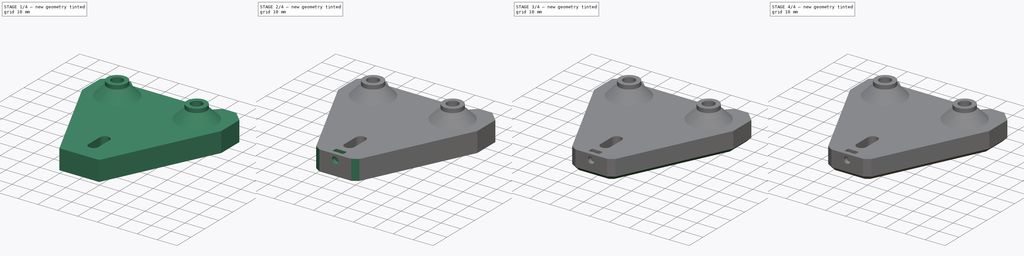
[diagram: build sequence overview — one tinted view per stage of 4, left to right]
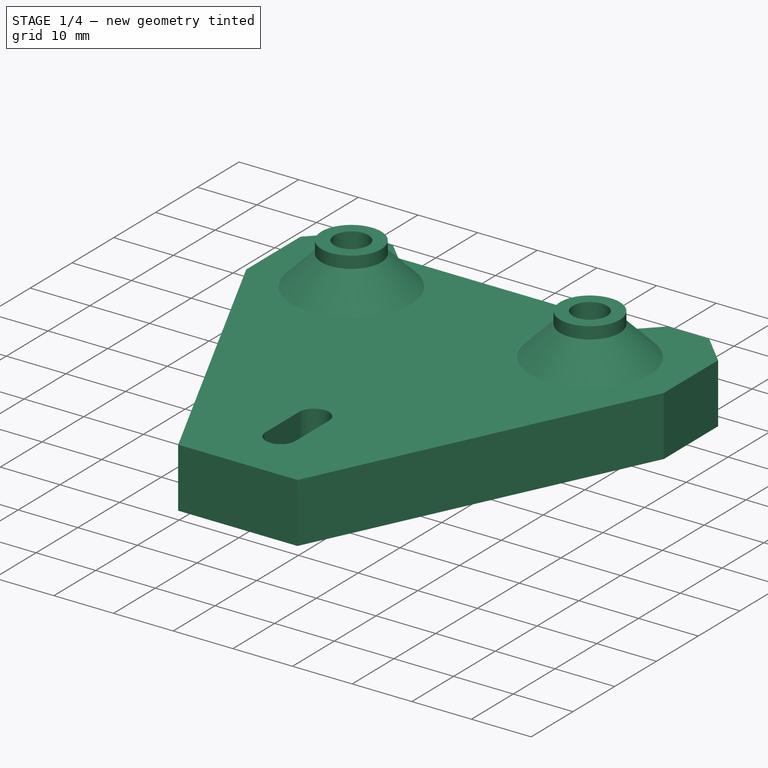
[diagram: stage 1 of 4 — iso view after this stage's code; geometry added in this stage tinted green]
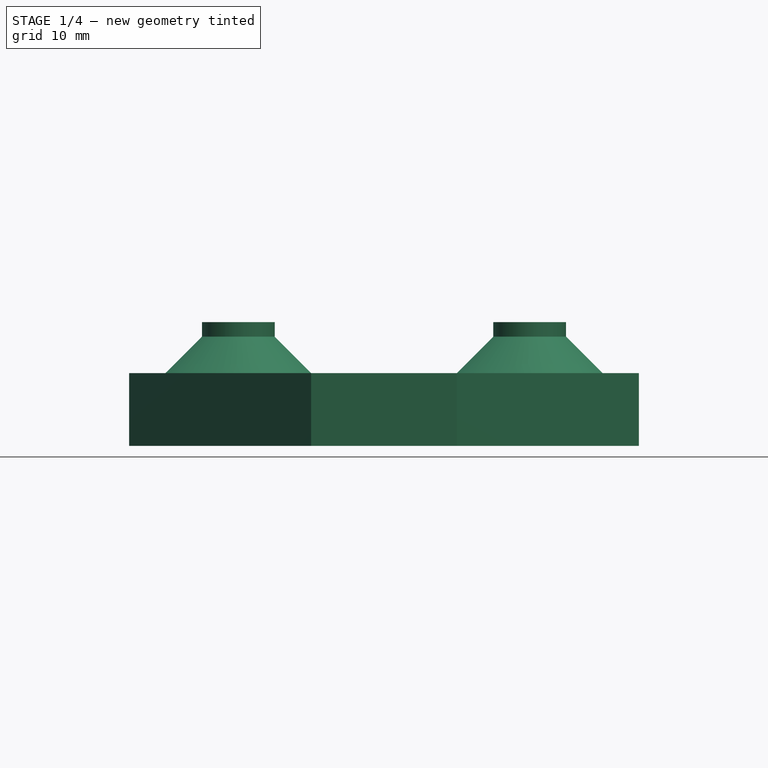
[diagram: stage 1 of 4 — front view after this stage's code; geometry added in this stage tinted green]
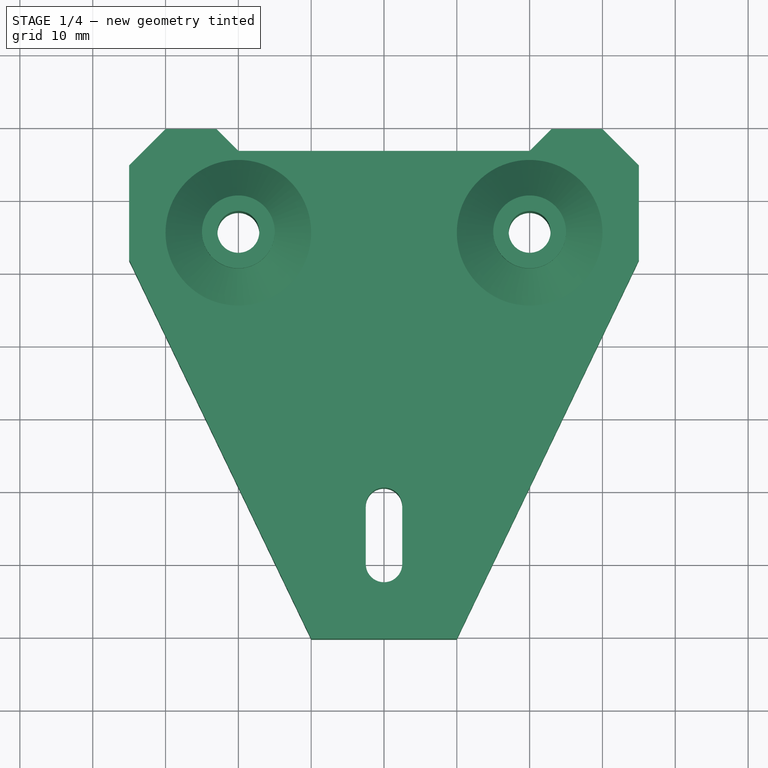
[diagram: stage 1 of 4 — top view after this stage's code; geometry added in this stage tinted green]
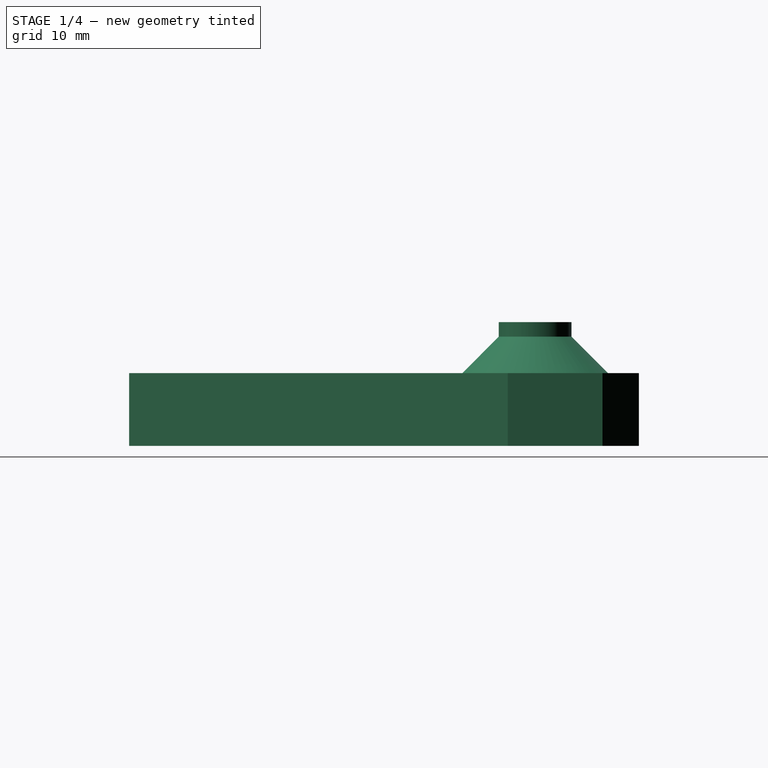
[diagram: stage 1 of 4 — right view after this stage's code; geometry added in this stage tinted green]
FCSTD DOCUMENT  (FreeCAD 0.20R29410 (Git))
Label: y-gantry-support
License: All rights reserved
LicenseURL: http://en.wikipedia.org/wiki/All_rights_reserved
objects: Sketcher::SketchObject×8, PartDesign::Pocket×8, PartDesign::Plane×7, PartDesign::Chamfer×4, PartDesign::Pad×2, PartDesign::Body×1
note: 44 computed .brp shape members not serialized (recipe doc carries the construction recipe); baked Part::Feature solids carry a one-line shape summary decoded from their .brp

FEATURE [Sketcher::SketchObject] Sketch
  FullyConstrained = true
  MapMode = 5
  Support = -> [XY_Plane]
  sketch-geometry (22):
    g0: ArcOfCircle CenterX=0 CenterY=0 CenterZ=0 NormalX=0 NormalY=0 NormalZ=1 AngleXU=0 Radius=2.5 StartAngle=3.14159 EndAngle=6.28319
    g1: ArcOfCircle CenterX=0 CenterY=8 CenterZ=0 NormalX=0 NormalY=0 NormalZ=1 AngleXU=0 Radius=2.5 StartAngle=0 EndAngle=3.14159
    g2: LineSegment StartX=2.5 StartY=-6e-16 StartZ=0 EndX=2.5 EndY=8 EndZ=0
    g3: LineSegment StartX=-2.5 StartY=-8e-16 StartZ=0 EndX=-2.5 EndY=8 EndZ=0
    g4: LineSegment StartX=-2.5 StartY=4 StartZ=0 EndX=2.5 EndY=4 EndZ=0
    g5: Circle CenterX=0 CenterY=4 CenterZ=0 NormalX=0 NormalY=0 NormalZ=1 AngleXU=0 Radius=12.5
    g6: LineSegment StartX=0 StartY=4 StartZ=0 EndX=0 EndY=45.5 EndZ=0
    g7: LineSegment StartX=-20 StartY=45.5 StartZ=0 EndX=20 EndY=45.5 EndZ=0
    g8: Circle CenterX=-20 CenterY=45.5 CenterZ=0 NormalX=0 NormalY=0 NormalZ=1 AngleXU=0 Radius=12.5
    g9: Circle CenterX=20 CenterY=45.5 CenterZ=0 NormalX=0 NormalY=0 NormalZ=1 AngleXU=0 Radius=12.5
    g10: Circle CenterX=-20 CenterY=45.5 CenterZ=0 NormalX=0 NormalY=0 NormalZ=1 AngleXU=0 Radius=2.875
    g11: Circle CenterX=20 CenterY=45.5 CenterZ=0 NormalX=0 NormalY=0 NormalZ=1 AngleXU=0 Radius=2.875
    g12: LineSegment StartX=-10 StartY=-10.25 StartZ=0 EndX=10 EndY=-10.25 EndZ=0
    g13: LineSegment StartX=10 StartY=-10.25 StartZ=0 EndX=35 EndY=41.75 EndZ=0
    g14: LineSegment StartX=35 StartY=41.75 StartZ=0 EndX=35 EndY=59.75 EndZ=0
    g15: LineSegment StartX=35 StartY=59.75 StartZ=0 EndX=23 EndY=59.75 EndZ=0
    g16: LineSegment StartX=-35 StartY=59.75 StartZ=0 EndX=-35 EndY=41.75 EndZ=0
    g17: LineSegment StartX=-35 StartY=41.75 StartZ=0 EndX=-10 EndY=-10.25 EndZ=0
    g18: LineSegment StartX=-23 StartY=59.75 StartZ=0 EndX=-20 EndY=56.75 EndZ=0
    g19: LineSegment StartX=-20 StartY=56.75 StartZ=0 EndX=20 EndY=56.75 EndZ=0
    g20: LineSegment StartX=20 StartY=56.75 StartZ=0 EndX=23 EndY=59.75 EndZ=0
    g21: LineSegment StartX=-23 StartY=59.75 StartZ=0 EndX=-35 EndY=59.75 EndZ=0
  constraints (55):
    c: Tangent(g0,g3)
    c: Tangent(g0,g2)
    c: Tangent(g2,g1)
    c: Tangent(g3,g1)
    c: Vertical(g2)
    c: Equal(g0,g1)
    c: Coincident(g0,g-1)
    c: Distance(g2) = 8
    c: Diameter(g1) = 5
    c: PointOnObject(g4,g3)
    c: PointOnObject(g4,g2)
    c: Symmetric(g1,g0,g4)
    c: PointOnObject(g5,g4)
    c: PointOnObject(g5,g-2)
    c: Diameter(g5) = 25
    c: Coincident(g6,g5)
    c: PointOnObject(g6,g-2)
    c: PointOnObject(g6,g7)
    c: Symmetric(g7,g7,g6)
    c: Coincident(g8,g7)
    c: Coincident(g9,g7)
    c: Diameter(g9) = 25
    c: Diameter(g8) = 25
    c: Coincident(g10,g7)
    c: Coincident(g11,g7)
    c: Diameter(g11) = 5.75
    c: Diameter(g10) = 5.75
    c: Coincident(g12,g13)
    c: Coincident(g13,g14)
    c: Vertical(g14)
    c: Coincident(g14,g15)
    c: Coincident(g21,g16)
    c: Vertical(g16)
    c: Coincident(g16,g17)
    c: Coincident(g17,g12)
    c: Distance(g5,g7) = 41.5
    c: Distance(g7) = 40
    c: Symmetric(g21,g14,g6)
    c: Symmetric(g12,g12,g-2)
    c: DistanceY(g6,g14) = 14.25
    c: DistanceX(g12,g12) = 20
    c: DistanceY(g16,g16) = 18
    c: DistanceY(g14,g14) = 18
    c: DistanceY(g12,g21) = 70
    c: Coincident(g18,g19)
    c: Coincident(g19,g20)
    c: DistanceX(g19,g19) = 40
    c: Symmetric(g19,g18,g-2)
    c: Angle(g20,g19) = 2.35619
    c: Angle(g19,g18) = 2.35619
    c: Coincident(g15,g20)
    c: Coincident(g21,g18)
    c: Tangent(g15,g21)
    c: Distance(g16,g14) = 70
    c: DistanceY(g18,g18) = 3
FEATURE [PartDesign::Pad] Pad
  AllowMultiFace = false
  Direction = (0,0,1)
  Length = 10
  Length2 = 100
  Profile = -> Sketch
  Type = 0
FEATURE [PartDesign::Plane] DatumPlane
  Length = 60
  MapMode = 5
  Placement = pos=(0,0,10) rot=(0,0,1;0rad)
  ResizeMode = 0
  Support = -> [Pad]
  Width = 60
FEATURE [Sketcher::SketchObject] Sketch001
  ExternalGeometry = -> [Pad]
  FullyConstrained = true
  MapMode = 5
  Placement = pos=(0,0,10) rot=(0,0,1;0rad)
  Support = -> [DatumPlane]
  sketch-geometry (4):
    g0: Circle CenterX=-20 CenterY=45.5 CenterZ=0 NormalX=0 NormalY=0 NormalZ=1 AngleXU=0 Radius=5
    g1: Circle CenterX=-20 CenterY=45.5 CenterZ=0 NormalX=0 NormalY=0 NormalZ=1 AngleXU=0 Radius=2.875
    g2: Circle CenterX=20 CenterY=45.5 CenterZ=0 NormalX=0 NormalY=0 NormalZ=1 AngleXU=0 Radius=5
    g3: Circle CenterX=20 CenterY=45.5 CenterZ=0 NormalX=0 NormalY=0 NormalZ=1 AngleXU=0 Radius=2.875
  constraints (8):
    c: Diameter(g0) = 10
    c: Diameter(g1) = 5.75
    c: Coincident(g3,g2)
    c: Diameter(g2) = 10
    c: Diameter(g3) = 5.75
    c: Coincident(g1,g-7)
    c: Coincident(g0,g1)
    c: Coincident(g2,g-8)
FEATURE [PartDesign::Pad] Pad001
  AllowMultiFace = false
  BaseFeature = -> Pad
  Direction = (0,0,1)
  Length = 7
  Length2 = 100
  Profile = -> Sketch001
  Type = 0
FEATURE [PartDesign::Chamfer] Chamfer
  Angle = 45
  Base = -> Pad001 [Edge35,Edge36]
  BaseFeature = -> Pad001
  ChamferType = 0
  FlipDirection = false
  Size = 5
  Size2 = 1
  SupportTransform = false
  UseAllEdges = false
FEATURE [PartDesign::Chamfer] Chamfer001
  Angle = 45
  Base = -> Chamfer [Edge34,Edge20]
  BaseFeature = -> Chamfer
  ChamferType = 0
  FlipDirection = false
  Size = 5
  Size2 = 1
  SupportTransform = false
  UseAllEdges = false
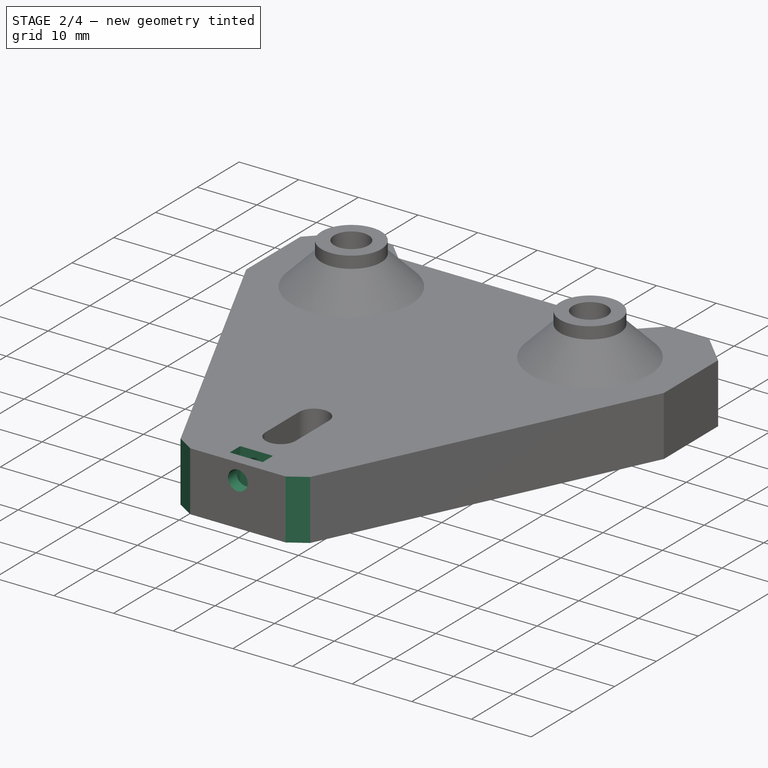
[diagram: stage 2 of 4 — iso view after this stage's code; geometry added in this stage tinted green]
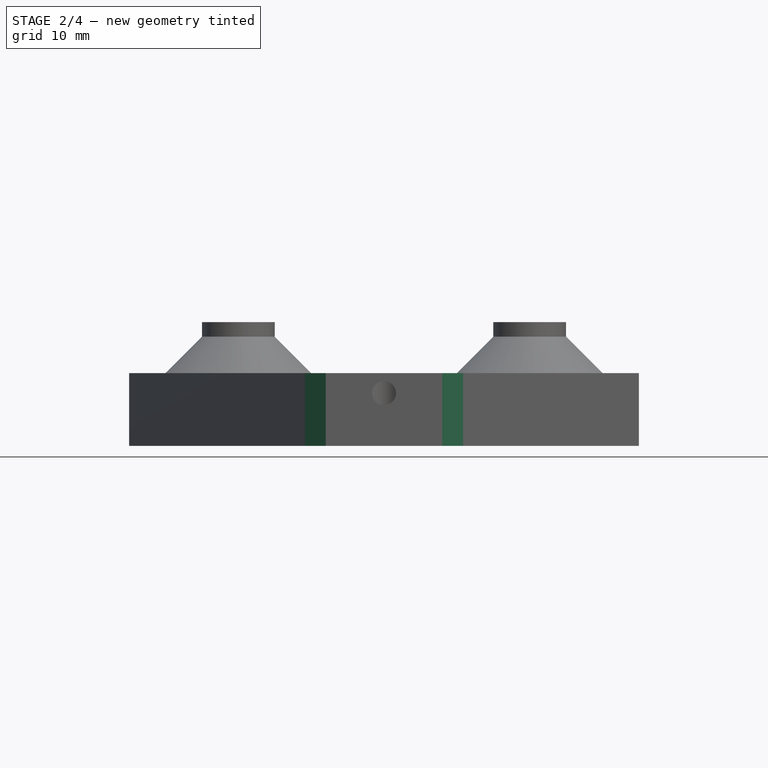
[diagram: stage 2 of 4 — front view after this stage's code; geometry added in this stage tinted green]
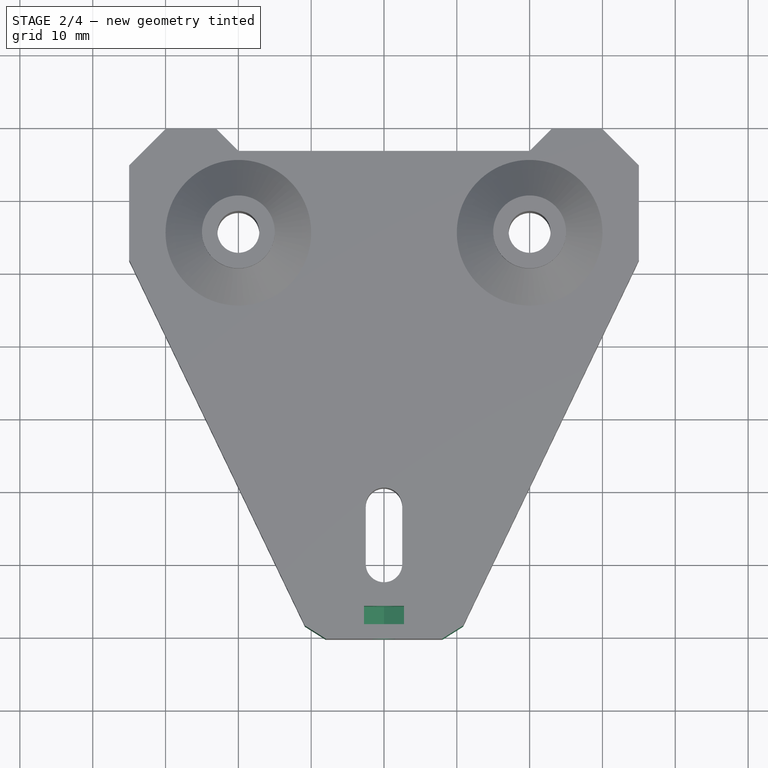
[diagram: stage 2 of 4 — top view after this stage's code; geometry added in this stage tinted green]
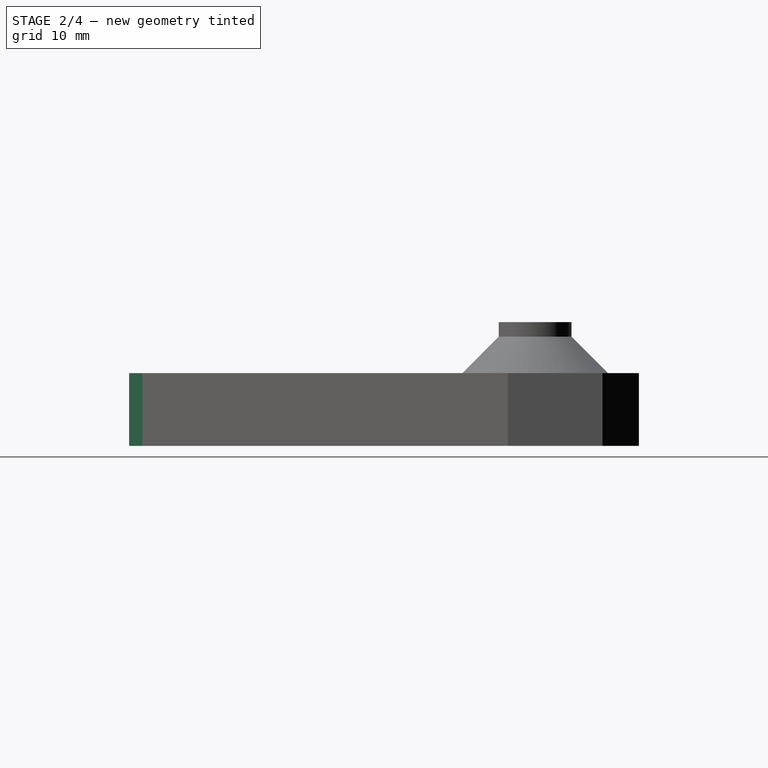
[diagram: stage 2 of 4 — right view after this stage's code; geometry added in this stage tinted green]
FEATURE [PartDesign::Plane] DatumPlane001
  AttachmentOffset = pos=(0,0,-2) rot=(0,0,1;0rad)
  Length = 60
  MapMode = 5
  Placement = pos=(0,-8.25,-4e-16) rot=(1,0,0;1.5708rad)
  ResizeMode = 0
  Support = -> [Chamfer001]
  Width = 60
FEATURE [Sketcher::SketchObject] Sketch004
  FullyConstrained = true
  MapMode = 5
  Support = -> [XY_Plane]
  sketch-geometry (27):
    g0: LineSegment StartX=-15.9 StartY=43.1329 StartZ=0 EndX=-15.9 EndY=47.8671 EndZ=0
    g1: LineSegment StartX=-15.9 StartY=47.8671 StartZ=0 EndX=-20 EndY=50.2343 EndZ=0
    g2: LineSegment StartX=-20 StartY=50.2343 StartZ=0 EndX=-24.1 EndY=47.8671 EndZ=0
    g3: LineSegment StartX=-24.1 StartY=47.8671 StartZ=0 EndX=-24.1 EndY=43.1329 EndZ=0
    g4: LineSegment StartX=-24.1 StartY=43.1329 StartZ=0 EndX=-20 EndY=40.7657 EndZ=0
    g5: LineSegment StartX=-20 StartY=40.7657 StartZ=0 EndX=-15.9 EndY=43.1329 EndZ=0
    g6: Circle CenterX=-20 CenterY=45.5 CenterZ=0 NormalX=0 NormalY=0 NormalZ=1 AngleXU=0 Radius=4.73427
    g7: LineSegment StartX=24.1 StartY=43.1329 StartZ=0 EndX=24.1 EndY=47.8671 EndZ=0
    g8: LineSegment StartX=24.1 StartY=47.8671 StartZ=0 EndX=20 EndY=50.2343 EndZ=0
    g9: LineSegment StartX=20 StartY=50.2343 StartZ=0 EndX=15.9 EndY=47.8671 EndZ=0
    g10: LineSegment StartX=15.9 StartY=47.8671 StartZ=0 EndX=15.9 EndY=43.1329 EndZ=0
    g11: LineSegment StartX=15.9 StartY=43.1329 StartZ=0 EndX=20 EndY=40.7657 EndZ=0
    g12: LineSegment StartX=20 StartY=40.7657 StartZ=0 EndX=24.1 EndY=43.1329 EndZ=0
    g13: Circle CenterX=20 CenterY=45.5 CenterZ=0 NormalX=0 NormalY=0 NormalZ=1 AngleXU=0 Radius=4.73427
    g14: LineSegment StartX=-20 StartY=45.5 StartZ=0 EndX=20 EndY=45.5 EndZ=0
    g15: LineSegment StartX=4 StartY=10.3094 StartZ=0 EndX=1.67542e-11 EndY=12.6188 EndZ=0
    g16: LineSegment StartX=1.67542e-11 StartY=12.6188 StartZ=0 EndX=-4 EndY=10.3094 EndZ=0
    g17: LineSegment StartX=-4 StartY=10.3094 StartZ=0 EndX=-4 EndY=5.6906 EndZ=0
    g18: LineSegment StartX=4 StartY=5.6906 StartZ=0 EndX=4 EndY=10.3094 EndZ=0
    g19: Circle CenterX=0 CenterY=8 CenterZ=0 NormalX=0 NormalY=0 NormalZ=1 AngleXU=0 Radius=4.6188
    g20: LineSegment StartX=4 StartY=-2.3094 StartZ=0 EndX=4 EndY=2.3094 EndZ=0
    g21: LineSegment StartX=-4 StartY=2.3094 StartZ=0 EndX=-4 EndY=-2.3094 EndZ=0
    g22: LineSegment StartX=-4 StartY=-2.3094 StartZ=0 EndX=0 EndY=-4.6188 EndZ=0
    g23: LineSegment StartX=0 StartY=-4.6188 StartZ=0 EndX=4 EndY=-2.3094 EndZ=0
    g24: Circle CenterX=0 CenterY=0 CenterZ=0 NormalX=0 NormalY=0 NormalZ=1 AngleXU=0 Radius=4.6188
    g25: LineSegment StartX=-4 StartY=5.6906 StartZ=0 EndX=-4 EndY=2.3094 EndZ=0
    g26: LineSegment StartX=4 StartY=5.6906 StartZ=0 EndX=4 EndY=2.3094 EndZ=0
  constraints (70):
    c: Coincident(g0,g1)
    c: Coincident(g1,g2)
    c: Coincident(g2,g3)
    c: Coincident(g3,g4)
    c: Coincident(g4,g5)
    c: Coincident(g5,g0)
    c: Equal(g0, g1-g5) x5
    c: PointOnObject(g0,g6)
    c: PointOnObject(g1,g6)
    c: PointOnObject(g2,g6)
    c: PointOnObject(g3,g6)
    c: PointOnObject(g4,g6)
    c: PointOnObject(g5,g6)
    c: Coincident(g7,g8)
    c: Coincident(g8,g9)
    c: Coincident(g9,g10)
    c: Coincident(g10,g11)
    c: Coincident(g11,g12)
    c: Coincident(g12,g7)
    c: Equal(g7, g8-g12) x5
    c: PointOnObject(g7,g13)
    c: PointOnObject(g8,g13)
    c: PointOnObject(g9,g13)
    c: PointOnObject(g10,g13)
    c: PointOnObject(g11,g13)
    c: PointOnObject(g12,g13)
    c: Vertical(g0)
    c: Vertical(g10)
    c: DistanceX(g2,g0) = 8.2
    c: DistanceX(g9,g7) = 8.2
    c: Coincident(g14,g6)
    c: Coincident(g14,g13)
    c: Symmetric(g6,g13,g-2)
    c: DistanceX(g14,g14) = 40
    c: DistanceY(g-1,g6) = 45.5
    c: Coincident(g15,g16)
    c: Coincident(g16,g17)
    c: Coincident(g18,g15)
    c: Equal(g15,g16)
    c: Equal(g15,g17)
    c: Equal(g15,g18)
    c: PointOnObject(g15,g19)
    c: PointOnObject(g16,g19)
    c: PointOnObject(g17,g19)
    c: PointOnObject(g18,g19)
    c: PointOnObject(g18,g19)
    c: PointOnObject(g19,g-2)
    c: Coincident(g21,g22)
    c: Coincident(g22,g23)
    c: Coincident(g23,g20)
    c: Equal(g20,g21)
    c: Equal(g20,g22)
    c: Equal(g20,g23)
    c: PointOnObject(g20,g24)
    c: PointOnObject(g21,g24)
    c: PointOnObject(g21,g24)
    c: PointOnObject(g22,g24)
    c: PointOnObject(g23,g24)
    c: Coincident(g24,g-1)
    c: Vertical(g18)
    c: Vertical(g20)
    c: DistanceX(g16,g15) = 8
    c: DistanceX(g21,g20) = 8
    c: DistanceY(g-1,g19) = 8
    c: Vertical(g21)
    c: Vertical(g17)
    c: Coincident(g25,g17)
    c: Coincident(g25,g21)
    c: Coincident(g26,g18)
    c: Coincident(g26,g20)
FEATURE [Sketcher::SketchObject] Sketch002
  FullyConstrained = true
  MapMode = 5
  Placement = pos=(0,-8.25,-4e-16) rot=(1,0,0;1.5708rad)
  Support = -> [DatumPlane001]
  sketch-geometry (10):
    g0: LineSegment StartX=1.3e-15 StartY=2.82457 StartZ=0 EndX=2.75 EndY=4.41229 EndZ=0
    g1: LineSegment StartX=2.75 StartY=4.41229 StartZ=0 EndX=2.75 EndY=7.58771 EndZ=0
    g2: LineSegment StartX=2.75 StartY=7.58771 StartZ=0 EndX=-3.6e-15 EndY=9.17543 EndZ=0
    g3: LineSegment StartX=-3.6e-15 StartY=9.17543 StartZ=0 EndX=-2.75 EndY=7.58771 EndZ=0
    g4: LineSegment StartX=-2.75 StartY=7.58771 StartZ=0 EndX=-2.75 EndY=4.41229 EndZ=0
    g5: LineSegment StartX=-2.75 StartY=4.41229 StartZ=0 EndX=1.3e-15 EndY=2.82457 EndZ=0
    g6: Circle CenterX=0 CenterY=6 CenterZ=0 NormalX=0 NormalY=0 NormalZ=1 AngleXU=0 Radius=3.17543
    g7: LineSegment StartX=-2.75 StartY=7.58771 StartZ=0 EndX=-2.75 EndY=12 EndZ=0
    g8: LineSegment StartX=-2.75 StartY=12 StartZ=0 EndX=2.75 EndY=12 EndZ=0
    g9: LineSegment StartX=2.75 StartY=12 StartZ=0 EndX=2.75 EndY=7.58771 EndZ=0
  constraints (25):
    c: Coincident(g0,g1)
    c: Coincident(g1,g2)
    c: Coincident(g2,g3)
    c: Coincident(g3,g4)
    c: Coincident(g4,g5)
    c: Coincident(g5,g0)
    c: Equal(g0, g1-g5) x5
    c: PointOnObject(g0,g6)
    c: PointOnObject(g1,g6)
    c: PointOnObject(g2,g6)
    c: PointOnObject(g3,g6)
    c: PointOnObject(g4,g6)
    c: PointOnObject(g5,g6)
    c: PointOnObject(g6,g-2)
    c: Coincident(g3,g7)
    c: Vertical(g7)
    c: Coincident(g7,g8)
    c: Horizontal(g8)
    c: Coincident(g8,g9)
    c: Coincident(g9,g1)
    c: Vertical(g9)
    c: Perpendicular(g-1,g4)
    c: Distance(g6,g-1) = 6
    c: Distance(g3,g1) = 5.5
    c: DistanceY(g-1,g7) = 12
FEATURE [PartDesign::Pocket] Pocket
  AllowMultiFace = false
  BaseFeature = -> Chamfer001
  Direction = (0,1,-2e-16)
  Length = 2.5
  Length2 = 100
  Profile = -> Sketch002
  Type = 0
FEATURE [PartDesign::Plane] DatumPlane002
  Length = 60
  MapMode = 5
  Placement = pos=(0,-10.25,0) rot=(1,0,0;1.5708rad)
  ResizeMode = 0
  Support = -> [Pocket]
  Width = 60
FEATURE [Sketcher::SketchObject] Sketch003
  FullyConstrained = true
  MapMode = 5
  Placement = pos=(0,-10.25,0) rot=(1,0,0;1.5708rad)
  Support = -> [DatumPlane002]
  sketch-geometry (1):
    g0: Circle CenterX=0 CenterY=7.25 CenterZ=0 NormalX=0 NormalY=0 NormalZ=1 AngleXU=0 Radius=1.65
  constraints (3):
    c: PointOnObject(g0,g-2)
    c: Diameter(g0) = 3.3
    c: Distance(g0,g-1) = 7.25
FEATURE [PartDesign::Pocket] Pocket001
  AllowMultiFace = false
  BaseFeature = -> Pocket
  Direction = (0,1,-2e-16)
  Length = 10
  Length2 = 100
  Profile = -> Sketch003
  Type = 0
FEATURE [PartDesign::Chamfer] Chamfer002
  Angle = 45
  Base = -> Pocket001 [Edge34,Edge39]
  BaseFeature = -> Pocket001
  ChamferType = 0
  FlipDirection = false
  Size = 2
  Size2 = 1
  SupportTransform = false
  UseAllEdges = false
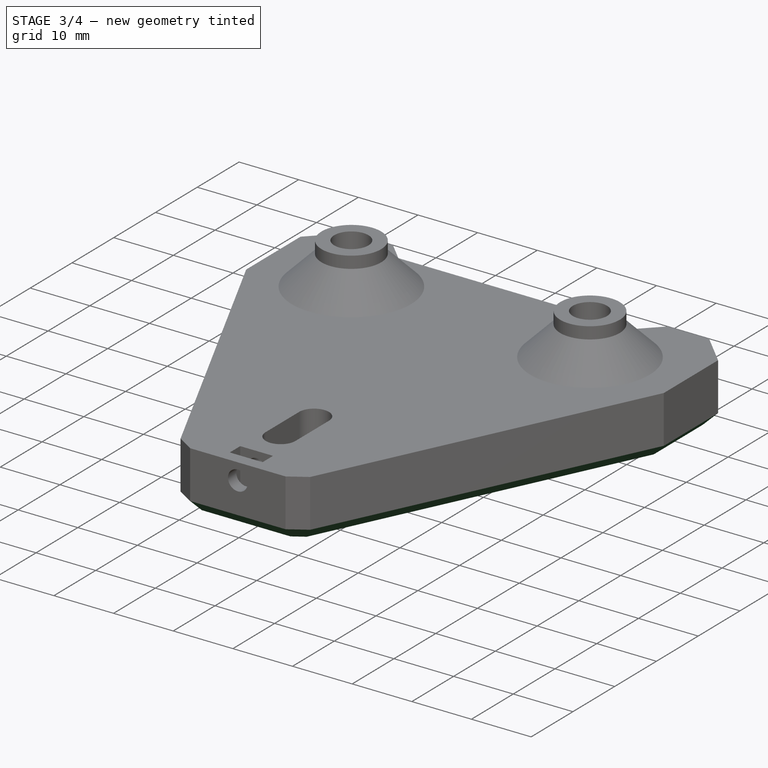
[diagram: stage 3 of 4 — iso view after this stage's code; geometry added in this stage tinted green]
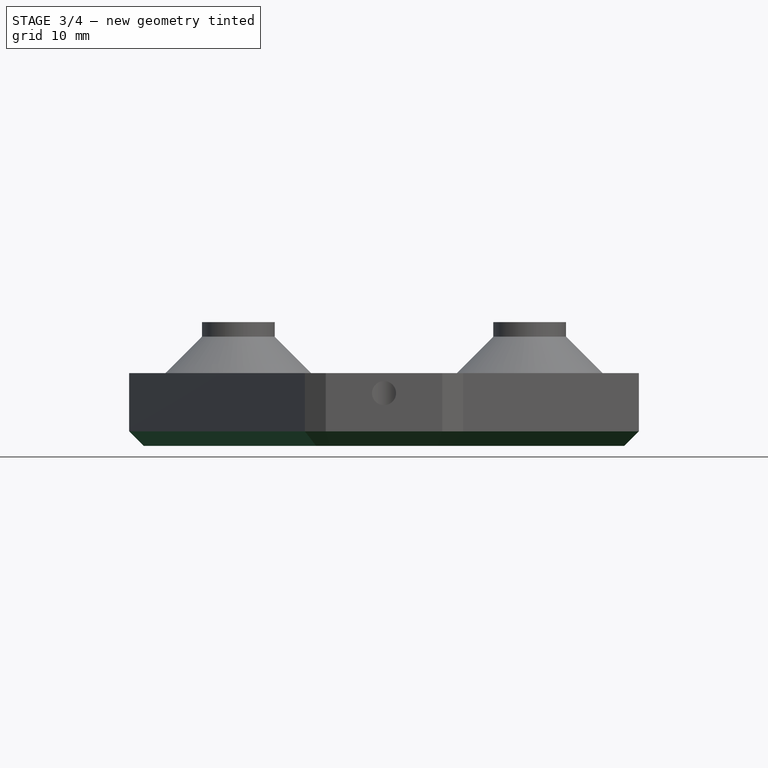
[diagram: stage 3 of 4 — front view after this stage's code; geometry added in this stage tinted green]
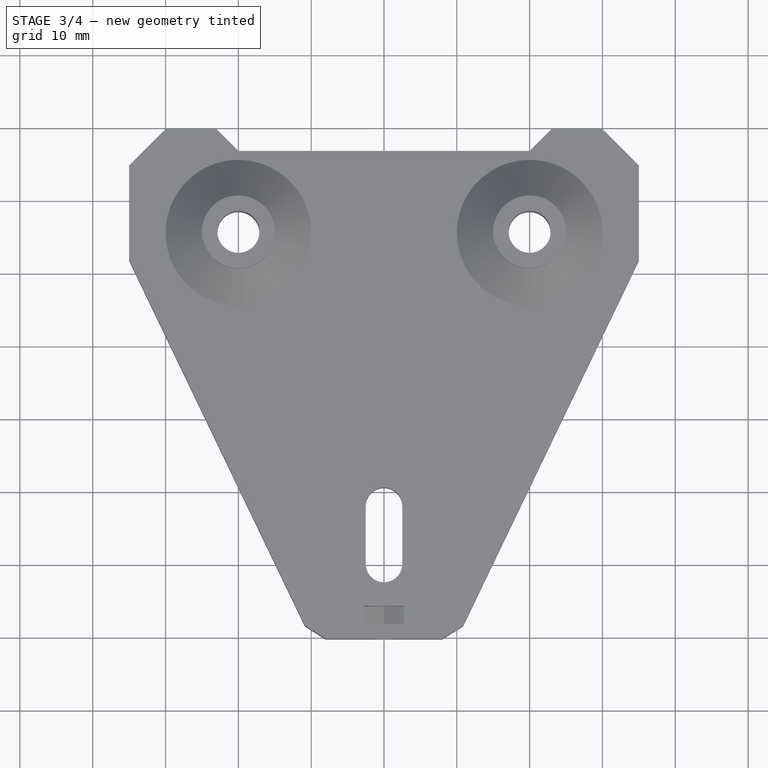
[diagram: stage 3 of 4 — top view after this stage's code; geometry added in this stage tinted green]
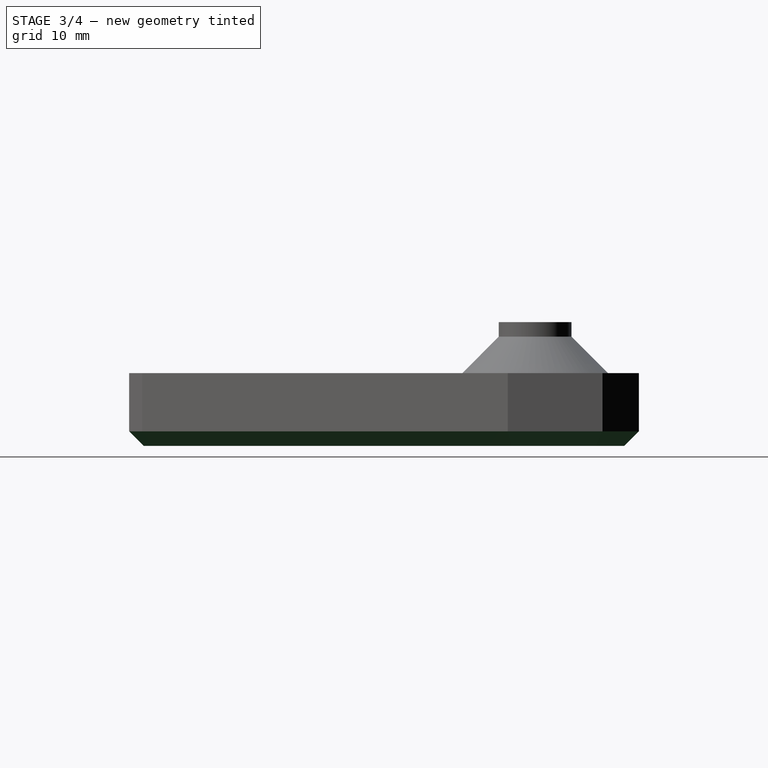
[diagram: stage 3 of 4 — right view after this stage's code; geometry added in this stage tinted green]
FEATURE [PartDesign::Pocket] Pocket002
  AllowMultiFace = false
  BaseFeature = -> Chamfer002
  Direction = (0,0,-1)
  Length = 4
  Length2 = 100
  Profile = -> Sketch004
  Reversed = true
  Type = 0
FEATURE [PartDesign::Chamfer] Chamfer003
  Angle = 45
  Base = -> Pocket002 [Edge41,Edge37,Edge32,Edge28,Edge25,Edge30,Edge35,Edge39,Edge44,Edge48,Edge52,Edge53,Edge49,Edge45]
  BaseFeature = -> Pocket002
  ChamferType = 0
  FlipDirection = false
  Size = 2
  Size2 = 1
  SupportTransform = false
  UseAllEdges = false
FEATURE [PartDesign::Plane] DatumPlane003  label="PrintPlane"
  Length = 60
  MapMode = 5
  Placement = pos=(0,0,0) rot=(1,0,0;3.14159rad)
  ResizeMode = 0
  Support = -> [Chamfer003]
  Width = 60
FEATURE [PartDesign::Pocket] Pocket005
  BaseFeature = -> Chamfer003
  Direction = (0,0,1)
  Length = 2
  Length2 = 5
  Profile = -> Chamfer003 [Face73,Face72]
  Type = 0
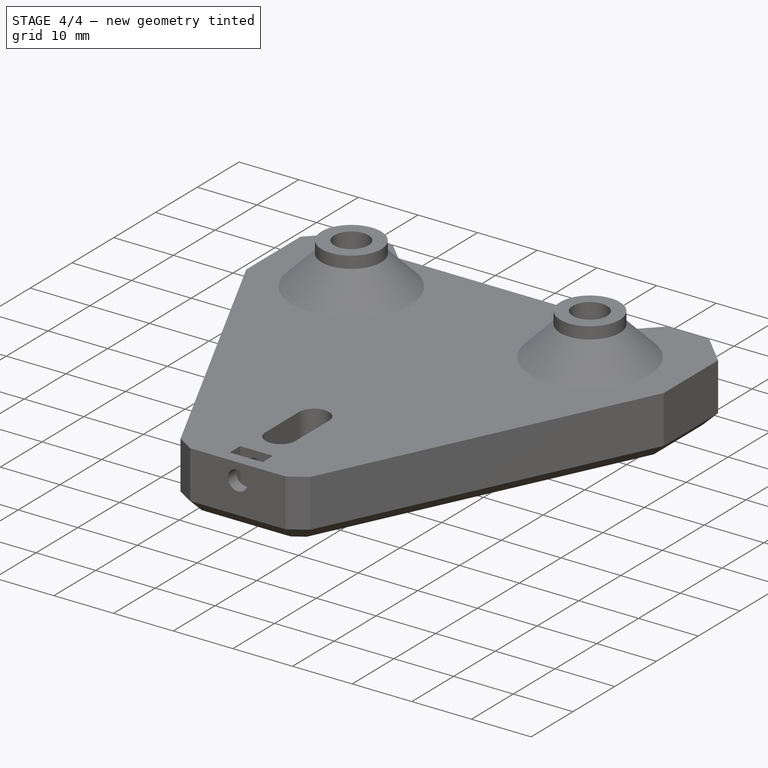
[diagram: stage 4 of 4 — iso view after this stage's code; geometry added in this stage tinted green]
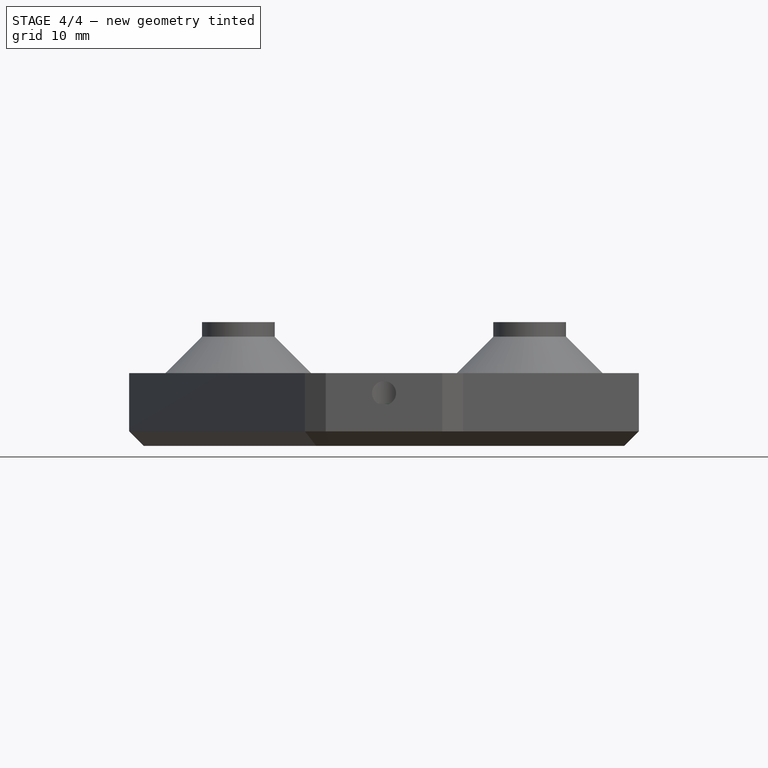
[diagram: stage 4 of 4 — front view after this stage's code; geometry added in this stage tinted green]
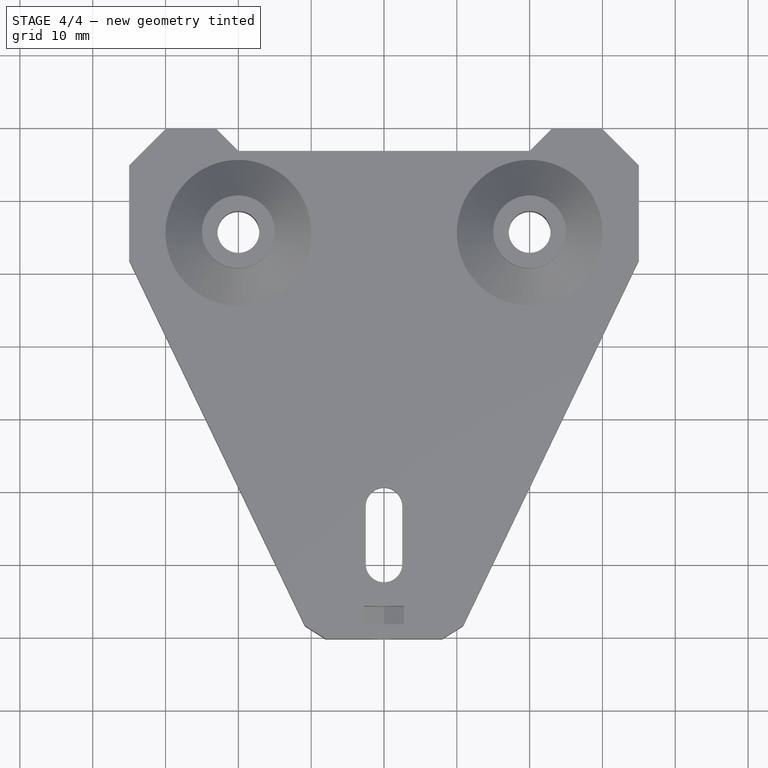
[diagram: stage 4 of 4 — top view after this stage's code; geometry added in this stage tinted green]
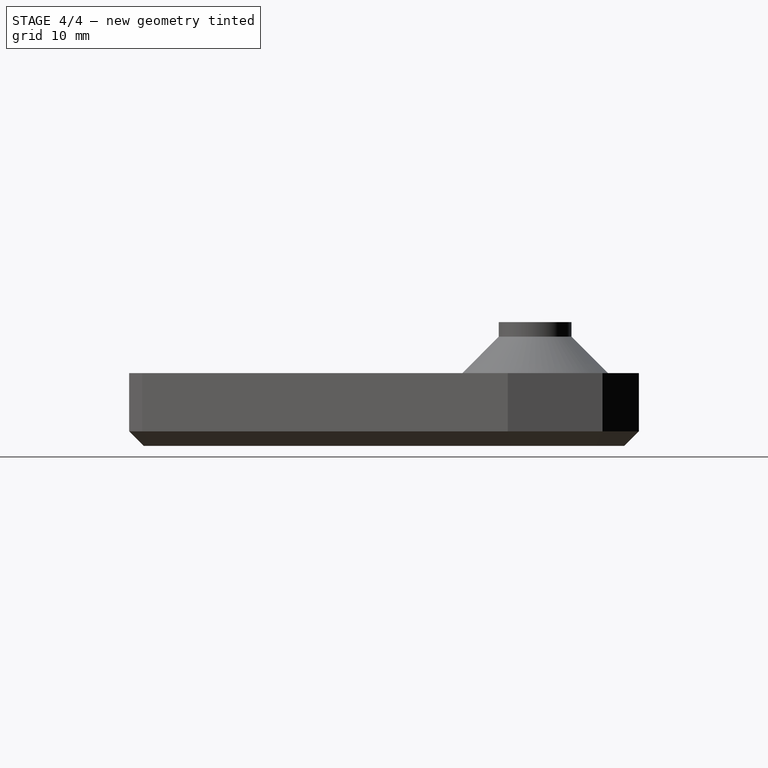
[diagram: stage 4 of 4 — right view after this stage's code; geometry added in this stage tinted green]
FEATURE [PartDesign::Plane] DatumPlane004
  Length = 60
  MapMode = 5
  Placement = pos=(0,0,6) rot=(1,0,0;3.14159rad)
  ResizeMode = 0
  Support = -> [Pocket005]
  Width = 60
FEATURE [Sketcher::SketchObject] Sketch006
  ExternalGeometry = -> [Chamfer003]
  FullyConstrained = true
  MapMode = 5
  Placement = pos=(0,0,6) rot=(1,0,0;3.14159rad)
  Support = -> [DatumPlane004]
  sketch-geometry (12):
    g0: LineSegment StartX=-2.5 StartY=2.5 StartZ=0 EndX=2.5 EndY=2.5 EndZ=0
    g1: LineSegment StartX=2.5 StartY=2.5 StartZ=0 EndX=2.5 EndY=-10.5 EndZ=0
    g2: LineSegment StartX=2.5 StartY=-10.5 StartZ=0 EndX=-2.5 EndY=-10.5 EndZ=0
    g3: LineSegment StartX=-2.5 StartY=-10.5 StartZ=0 EndX=-2.5 EndY=2.5 EndZ=0
    g4: LineSegment StartX=-22.875 StartY=-48.375 StartZ=0 EndX=-17.125 EndY=-48.375 EndZ=0
    g5: LineSegment StartX=-17.125 StartY=-48.375 StartZ=0 EndX=-17.125 EndY=-42.625 EndZ=0
    g6: LineSegment StartX=-17.125 StartY=-42.625 StartZ=0 EndX=-22.875 EndY=-42.625 EndZ=0
    g7: LineSegment StartX=-22.875 StartY=-42.625 StartZ=0 EndX=-22.875 EndY=-48.375 EndZ=0
    g8: LineSegment StartX=17.125 StartY=-48.375 StartZ=0 EndX=22.875 EndY=-48.375 EndZ=0
    g9: LineSegment StartX=22.875 StartY=-48.375 StartZ=0 EndX=22.875 EndY=-42.625 EndZ=0
    g10: LineSegment StartX=22.875 StartY=-42.625 StartZ=0 EndX=17.125 EndY=-42.625 EndZ=0
    g11: LineSegment StartX=17.125 StartY=-42.625 StartZ=0 EndX=17.125 EndY=-48.375 EndZ=0
  constraints (36):
    c: Coincident(g0,g1)
    c: Coincident(g1,g2)
    c: Coincident(g2,g3)
    c: Coincident(g3,g0)
    c: Horizontal(g0)
    c: Horizontal(g2)
    c: Vertical(g1)
    c: Vertical(g3)
    c: Tangent(g-6,g2)
    c: Tangent(g0,g-5)
    c: PointOnObject(g-5,g3)
    c: PointOnObject(g-5,g1)
    c: Coincident(g4,g5)
    c: Coincident(g5,g6)
    c: Coincident(g6,g7)
    c: Coincident(g7,g4)
    c: Horizontal(g4)
    c: Horizontal(g6)
    c: Vertical(g5)
    c: Vertical(g7)
    c: Coincident(g8,g9)
    c: Coincident(g9,g10)
    c: Coincident(g10,g11)
    c: Coincident(g11,g8)
    c: Horizontal(g8)
    c: Horizontal(g10)
    c: Vertical(g9)
    c: Vertical(g11)
    c: Equal(g10,g11)
    c: Equal(g11,g7)
    c: Equal(g7,g6)
    c: Tangent(g6,g-7)
    c: Tangent(g7,g-7)
    c: Tangent(g5,g-7)
    c: Tangent(g9,g-8)
    c: Tangent(g10,g-8)
FEATURE [PartDesign::Pocket] Pocket003
  BaseFeature = -> Pocket005
  Direction = (0,0,1)
  Length = 0.8
  Length2 = 100
  Profile = -> Sketch006
  Type = 0
FEATURE [PartDesign::Pocket] Pocket006
  BaseFeature = -> Pocket003
  Direction = (0,0,1)
  Length = 1
  Length2 = 5
  Profile = -> Pocket003 [Face69]
  Type = 0
FEATURE [PartDesign::Plane] DatumPlane005
  AttachmentOffset = pos=(0,0,-0.8) rot=(0,0,1;0rad)
  Length = 60
  MapMode = 5
  Placement = pos=(0,0,5.8) rot=(1,0,0;3.14159rad)
  ResizeMode = 0
  Support = -> [Pocket006]
  Width = 60
FEATURE [Sketcher::SketchObject] Sketch007
  ExternalGeometry = -> [Pocket006]
  FullyConstrained = true
  MapMode = 5
  Placement = pos=(0,0,5.8) rot=(1,0,0;3.14159rad)
  Support = -> [DatumPlane005]
  sketch-geometry (4):
    g0: LineSegment StartX=-2.5 StartY=2.5 StartZ=0 EndX=2.5 EndY=2.5 EndZ=0
    g1: LineSegment StartX=2.5 StartY=2.5 StartZ=0 EndX=2.5 EndY=-10.5 EndZ=0
    g2: LineSegment StartX=2.5 StartY=-10.5 StartZ=0 EndX=-2.5 EndY=-10.5 EndZ=0
    g3: LineSegment StartX=-2.5 StartY=-10.5 StartZ=0 EndX=-2.5 EndY=2.5 EndZ=0
  constraints (12):
    c: Coincident(g0,g1)
    c: Coincident(g1,g2)
    c: Coincident(g2,g3)
    c: Coincident(g3,g0)
    c: Horizontal(g0)
    c: Horizontal(g2)
    c: Vertical(g1)
    c: Vertical(g3)
    c: PointOnObject(g-4,g1)
    c: PointOnObject(g-3,g3)
    c: Tangent(g0,g-3)
    c: Tangent(g-4,g2)
FEATURE [PartDesign::Pocket] Pocket007
  BaseFeature = -> Pocket006
  Direction = (0,0,1)
  Length = 5
  Length2 = 5
  Profile = -> Sketch007
  ReferenceAxis = -> Sketch007 [N_Axis]
  Reversed = true
  Type = 0
FEATURE [PartDesign::Plane] DatumPlane006
  Length = 60
  MapMode = 5
  Placement = pos=(0,0,5) rot=(1,0,0;3.14159rad)
  ResizeMode = 0
  Support = -> [Pocket007]
  Width = 60
FEATURE [Sketcher::SketchObject] Sketch008
  ExternalGeometry = -> [Pocket007]
  FullyConstrained = true
  MapMode = 5
  Placement = pos=(0,0,5) rot=(1,0,0;3.14159rad)
  Support = -> [DatumPlane006]
  sketch-geometry (10):
    g0: LineSegment StartX=-2.5 StartY=2.5 StartZ=0 EndX=2.5 EndY=2.5 EndZ=0
    g1: LineSegment StartX=2.5 StartY=2.5 StartZ=0 EndX=2.5 EndY=3.17543 EndZ=0
    g2: LineSegment StartX=-2.5 StartY=2.5 StartZ=0 EndX=-2.5 EndY=3.17543 EndZ=0
    g3: LineSegment StartX=-2.5 StartY=3.17543 StartZ=0 EndX=0 EndY=4.6188 EndZ=0
    g4: LineSegment StartX=0 StartY=4.6188 StartZ=0 EndX=2.5 EndY=3.17543 EndZ=0
    g5: LineSegment StartX=-2.5 StartY=-10.5 StartZ=0 EndX=-2.5 EndY=-11.1754 EndZ=0
    g6: LineSegment StartX=-2.5 StartY=-11.1754 StartZ=0 EndX=0 EndY=-12.6188 EndZ=0
    g7: LineSegment StartX=0 StartY=-12.6188 StartZ=0 EndX=2.5 EndY=-11.1754 EndZ=0
    g8: LineSegment StartX=2.5 StartY=-10.5 StartZ=0 EndX=2.5 EndY=-11.1754 EndZ=0
    g9: LineSegment StartX=-2.5 StartY=-10.5 StartZ=0 EndX=2.5 EndY=-10.5 EndZ=0
  constraints (24):
    c: Coincident(g0,g-3)
    c: Coincident(g0,g-4)
    c: Coincident(g1,g0)
    c: PointOnObject(g1,g-5)
    c: Vertical(g1)
    c: Coincident(g2,g0)
    c: PointOnObject(g2,g-6)
    c: Coincident(g3,g2)
    c: Coincident(g3,g-6)
    c: Coincident(g4,g3)
    c: Coincident(g4,g1)
    c: Vertical(g2)
    c: Coincident(g5,g-9)
    c: PointOnObject(g5,g-7)
    c: Vertical(g5)
    c: Coincident(g6,g5)
    c: Coincident(g7,g6)
    c: PointOnObject(g7,g-8)
    c: Coincident(g8,g-10)
    c: Coincident(g8,g7)
    c: Vertical(g8)
    c: Coincident(g6,g-8)
    c: Coincident(g9,g5)
    c: Coincident(g9,g8)
FEATURE [PartDesign::Pocket] Pocket008
  BaseFeature = -> Pocket007
  Direction = (0,0,1)
  Length = 0.4
  Length2 = 5
  Profile = -> Sketch008
  ReferenceAxis = -> Sketch008 [N_Axis]
  Type = 0
FEATURE [PartDesign::Body] Body
  Group = -> [Sketch,Pad,DatumPlane,Sketch001,Pad001,Chamfer,Chamfer001,DatumPlane001,Sketch002,Pocket,DatumPlane002,Sketch003,Pocket001,Chamfer002,Sketch004,Pocket002,Chamfer003,DatumPlane003,DatumPlane004,Sketch006,Pocket005,Pocket003,Pocket006,Sketch007,DatumPlane005,Pocket007,DatumPlane006,Sketch008,Pocket008]
  Origin = -> Origin
  Tip = -> Pocket008
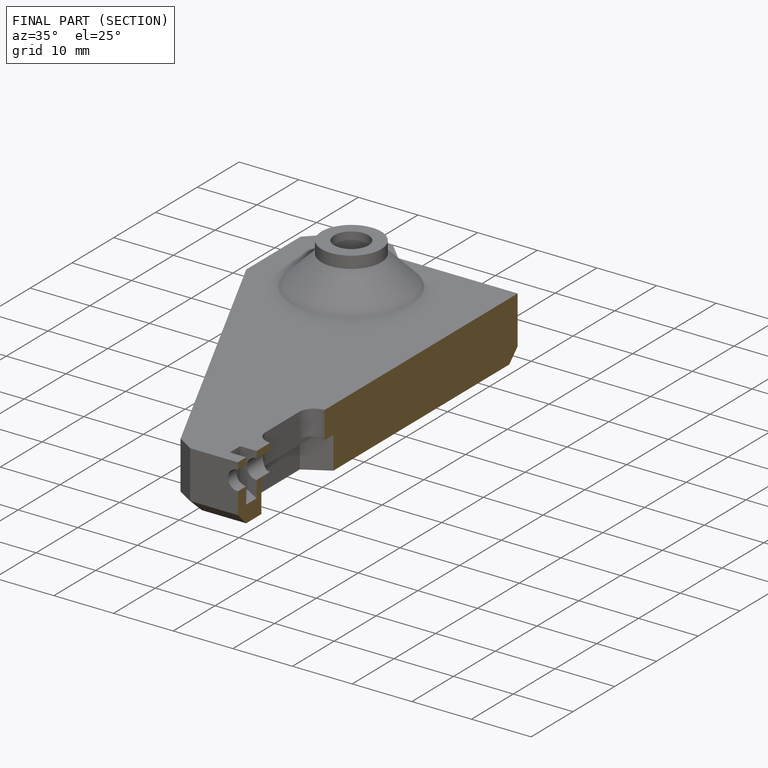
[diagram: finished part — half-section view (interior)]
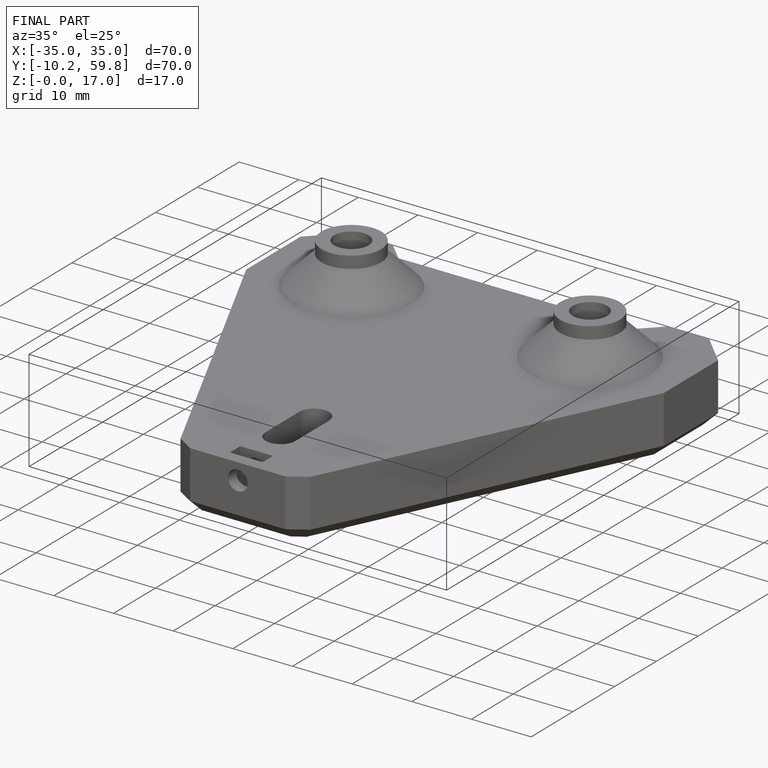
[diagram: finished part — iso view with bounding-box wireframe]
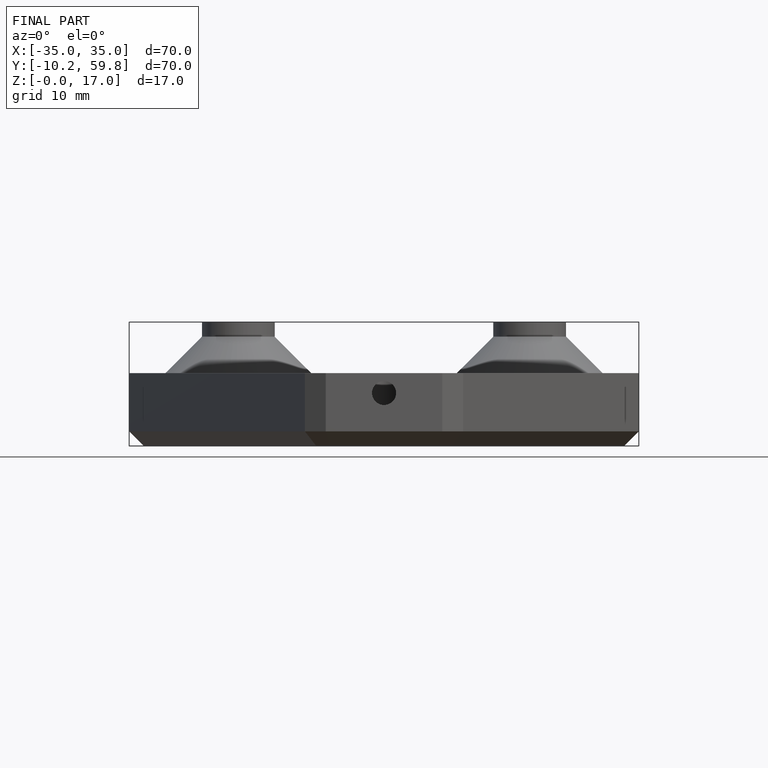
[diagram: finished part — front view with bounding-box wireframe]
